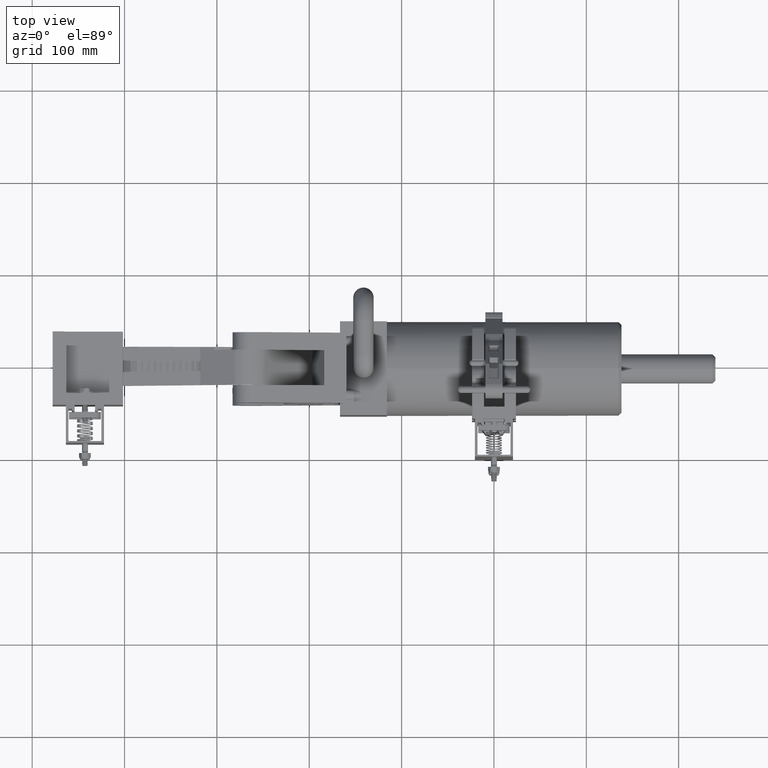
[diagram: clean part render]
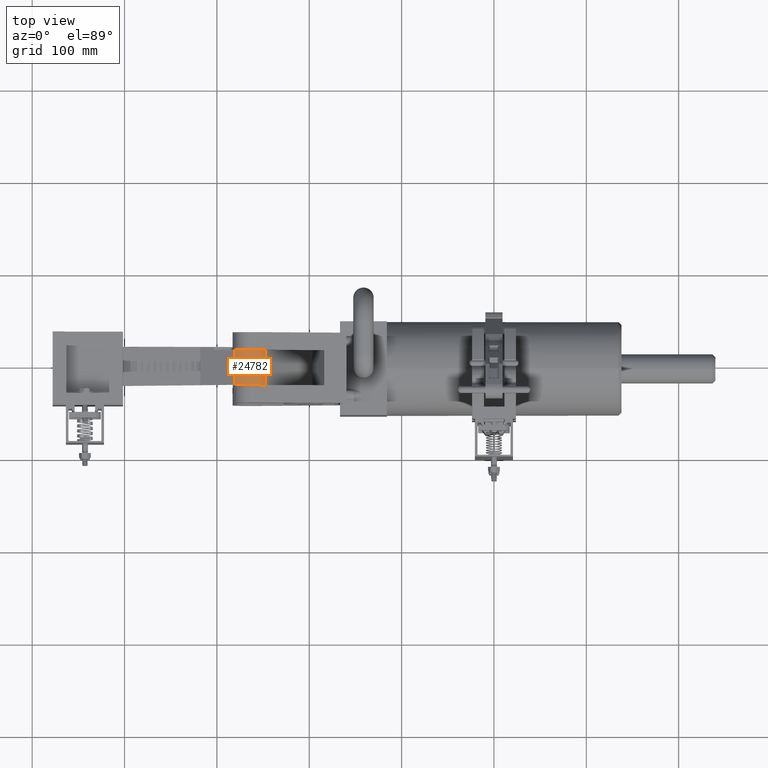
[diagram: same view with one face highlighted and labeled with its STEP entity id]
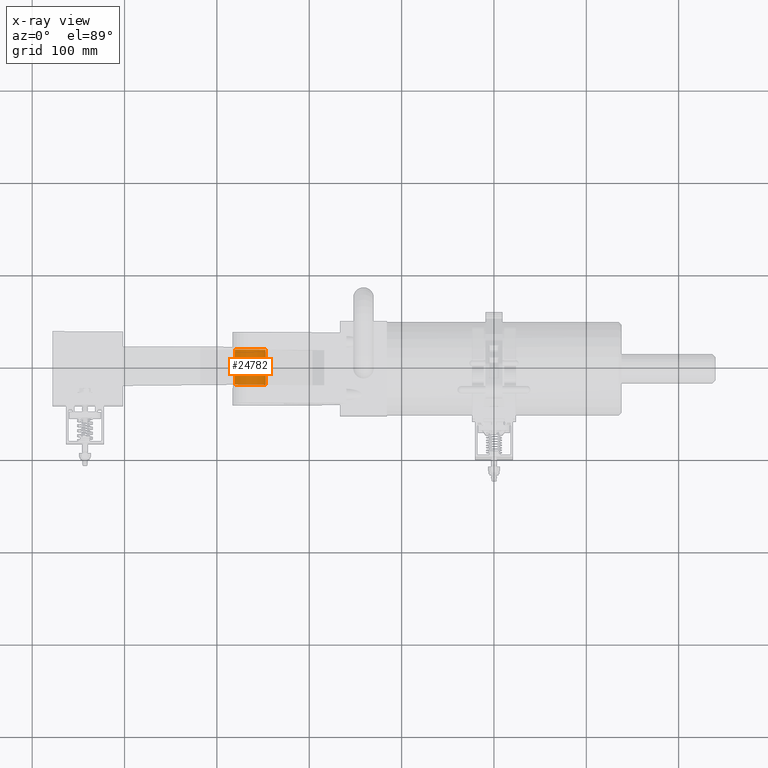
[diagram: x-ray of the same camera — body ghosted, the highlighted face saturated]
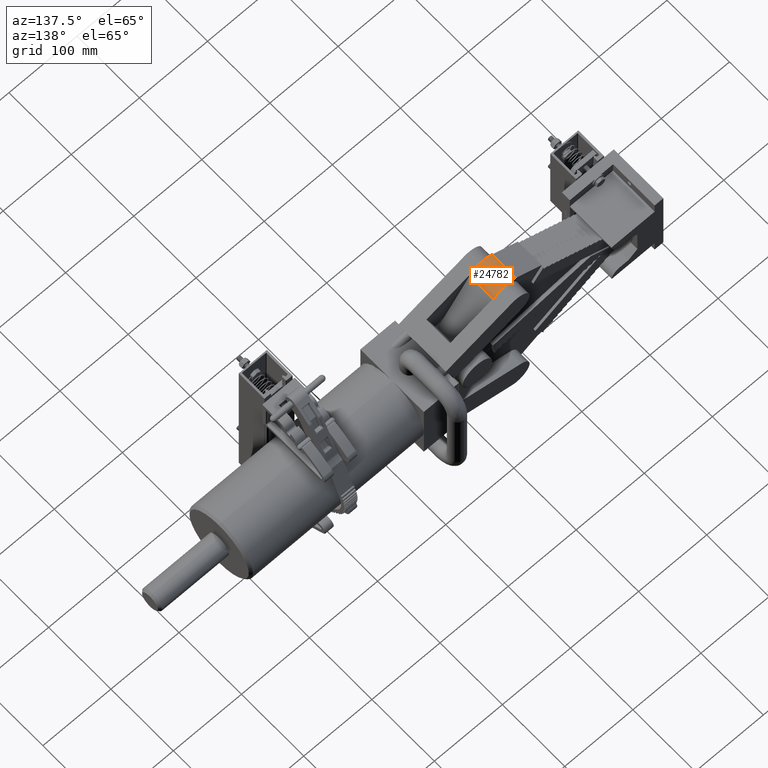
[diagram: same view with one face highlighted and labeled with its STEP entity id]
A machine part, top view. The second image highlights one B-rep face of the part: STEP entity #24782.
The next image is the same camera in x-ray: the body ghosted, the highlighted face saturated — about 0% of this face is hidden behind the body in this view.
A second angle (auxiliary view) of the same face is appended — the face is thin or edge-on in the first view.
In plain terms, the highlighted cylindrical surface (edge-blend (fillet) strip) has radius 25.4 mm, axis along (0, -1, 0).
Its self-contained STEP definition (entity closure, byte-faithful):
#711 = CARTESIAN_POINT ( 'NONE',  ( 3.302443539764661200, 7.720000000000028200, -0.7500000000000010000 ) ) ;
#1725 = DIRECTION ( 'NONE',  ( -1.000000000000000000, -2.185478394931410600E-015, 0.0000000000000000000 ) ) ;
#4815 = DIRECTION ( 'NONE',  ( -1.000000000000000000, 1.092739197465705300E-015, 0.0000000000000000000 ) ) ;
#6343 = EDGE_CURVE ( 'NONE', #52047, #32907, #41539, .T. ) ;
#7805 = CARTESIAN_POINT ( 'NONE',  ( 4.168468943549099100, 7.220000000000022000, 0.7499999999999998900 ) ) ;
#8334 = ORIENTED_EDGE ( 'NONE', *, *, #44814, .F. ) ;
#8821 = CARTESIAN_POINT ( 'NONE',  ( 4.053609672597087200, 8.380113203083842800, 0.7499999999999998900 ) ) ;
#9016 = VECTOR ( 'NONE', #15993, 39.37007874015748100 ) ;
#10716 = DIRECTION ( 'NONE',  ( 3.992478743742037100E-017, 1.072969629702611300E-016, -1.000000000000000000 ) ) ;
#11039 = DIRECTION ( 'NONE',  ( -3.992478743742037100E-017, -1.072969629702611400E-016, 1.000000000000000000 ) ) ;
#11658 = DIRECTION ( 'NONE',  ( 3.992478743742037100E-017, 1.072969629702611400E-016, -1.000000000000000000 ) ) ;
#13045 = CARTESIAN_POINT ( 'NONE',  ( 4.053609672597087200, 8.380113203083842800, -0.7500000000000010000 ) ) ;
#13785 = AXIS2_PLACEMENT_3D ( 'NONE', #36681, #20453, #16363 ) ;
#15993 = DIRECTION ( 'NONE',  ( -3.992478743742037100E-017, -1.072969629702611300E-016, 1.000000000000000000 ) ) ;
#16235 = ORIENTED_EDGE ( 'NONE', *, *, #6343, .F. ) ;
#16363 = DIRECTION ( 'NONE',  ( -1.000000000000000000, 1.092739197465705300E-015, 0.0000000000000000000 ) ) ;
#18122 = ORIENTED_EDGE ( 'NONE', *, *, #22533, .F. ) ;
#18740 = CARTESIAN_POINT ( 'NONE',  ( 3.889994343745617900, 8.529187279151965800, 0.7499999999999998900 ) ) ;
#20151 = VECTOR ( 'NONE', #10716, 39.37007874015748100 ) ;
#20453 = DIRECTION ( 'NONE',  ( 3.992478743742037100E-017, 1.072969629702611400E-016, -1.000000000000000000 ) ) ;
#22533 = EDGE_CURVE ( 'NONE', #32907, #50221, #52550, .T. ) ;
#23688 = EDGE_LOOP ( 'NONE', ( #18122, #16235, #8334, #32378, #26359, #32486 ) ) ;
#24134 = AXIS2_PLACEMENT_3D ( 'NONE', #36079, #11658, #40161 ) ;
#24782 = ADVANCED_FACE ( 'NONE', ( #51046 ), #49797, .T. ) ;
#25304 = VERTEX_POINT ( 'NONE', #32982 ) ;
#26145 = DIRECTION ( 'NONE',  ( -3.992478743742037100E-017, -1.072969629702611400E-016, 1.000000000000000000 ) ) ;
#26359 = ORIENTED_EDGE ( 'NONE', *, *, #43627, .F. ) ;
#27865 = CIRCLE ( 'NONE', #51994, 1.000000000000000000 ) ;
#29078 = CARTESIAN_POINT ( 'NONE',  ( 3.889994343745618800, 8.529187279151965800, 0.7499999999999998900 ) ) ;
#29231 = DIRECTION ( 'NONE',  ( 3.992478743742037100E-017, 1.072969629702611400E-016, -1.000000000000000000 ) ) ;
#29451 = VERTEX_POINT ( 'NONE', #29078 ) ;
#31012 = LINE ( 'NONE', #18740, #20151 ) ;
#32378 = ORIENTED_EDGE ( 'NONE', *, *, #50492, .F. ) ;
#32486 = ORIENTED_EDGE ( 'NONE', *, *, #34875, .F. ) ;
#32907 = VERTEX_POINT ( 'NONE', #35571 ) ;
#32982 = CARTESIAN_POINT ( 'NONE',  ( 3.889994343745618800, 8.529187279151965800, -0.7500000000000010000 ) ) ;
#33489 = CARTESIAN_POINT ( 'NONE',  ( 4.168468943549099100, 7.220000000000026400, -0.7500000000000010000 ) ) ;
#34875 = EDGE_CURVE ( 'NONE', #50221, #29451, #42780, .T. ) ;
#35470 = CARTESIAN_POINT ( 'NONE',  ( 3.302443539764661200, 7.720000000000028200, 0.7499999999999998900 ) ) ;
#35571 = CARTESIAN_POINT ( 'NONE',  ( 4.168468943549099100, 7.220000000000026400, 0.7499999999999998900 ) ) ;
#36079 = CARTESIAN_POINT ( 'NONE',  ( 3.302443539764661200, 7.720000000000028200, -0.7500000000000010000 ) ) ;
#36681 = CARTESIAN_POINT ( 'NONE',  ( 3.302443539764661200, 7.720000000000028200, 0.7499999999999998900 ) ) ;
#39558 = DIRECTION ( 'NONE',  ( -1.000000000000000000, 2.185478394931410600E-015, 0.0000000000000000000 ) ) ;
#40161 = DIRECTION ( 'NONE',  ( -1.000000000000000000, 1.092739197465705300E-015, 0.0000000000000000000 ) ) ;
#41539 = LINE ( 'NONE', #7805, #9016 ) ;
#42780 = CIRCLE ( 'NONE', #49692, 1.000000000000000000 ) ;
#43627 = EDGE_CURVE ( 'NONE', #29451, #25304, #31012, .T. ) ;
#44814 = EDGE_CURVE ( 'NONE', #49096, #52047, #51260, .T. ) ;
#49096 = VERTEX_POINT ( 'NONE', #13045 ) ;
#49196 = AXIS2_PLACEMENT_3D ( 'NONE', #50506, #26145, #1725 ) ;
#49692 = AXIS2_PLACEMENT_3D ( 'NONE', #35470, #11039, #39558 ) ;
#49797 = CYLINDRICAL_SURFACE ( 'NONE', #13785, 1.000000000000000000 ) ;
#50221 = VERTEX_POINT ( 'NONE', #8821 ) ;
#50492 = EDGE_CURVE ( 'NONE', #25304, #49096, #27865, .T. ) ;
#50506 = CARTESIAN_POINT ( 'NONE',  ( 3.302443539764661200, 7.720000000000028200, 0.7499999999999998900 ) ) ;
#51046 = FACE_OUTER_BOUND ( 'NONE', #23688, .T. ) ;
#51260 = CIRCLE ( 'NONE', #24134, 1.000000000000000000 ) ;
#51994 = AXIS2_PLACEMENT_3D ( 'NONE', #711, #29231, #4815 ) ;
#52047 = VERTEX_POINT ( 'NONE', #33489 ) ;
#52550 = CIRCLE ( 'NONE', #49196, 1.000000000000000000 ) ;